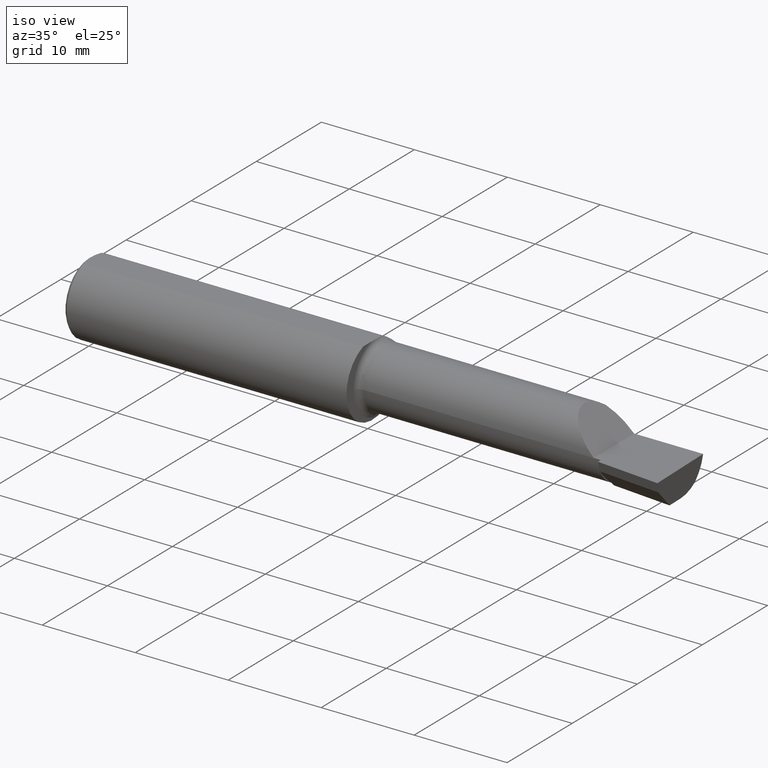
[diagram: clean part render]
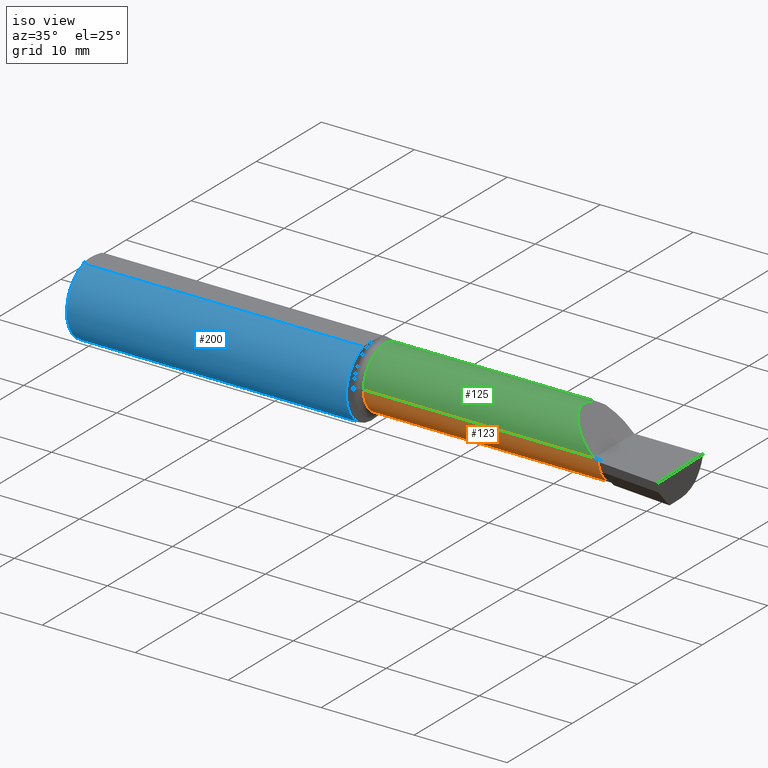
[diagram: same view with three faces highlighted in distinct colors, each labeled with its STEP entity id]
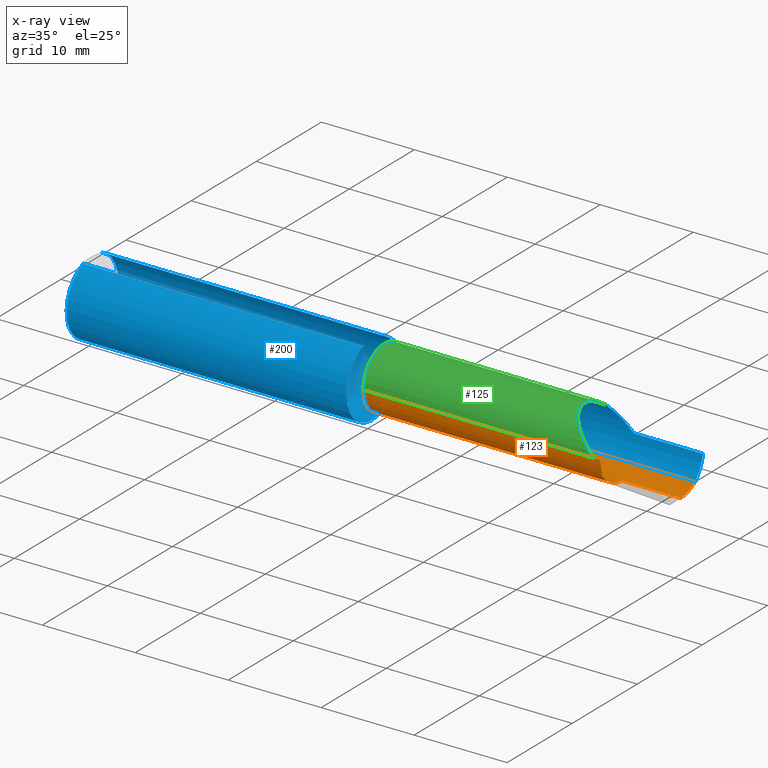
[diagram: x-ray of the same camera — body ghosted, the three highlighted faces saturated]
A machine part, iso view with three faces highlighted in distinct colors.
The next image is the same camera in x-ray (body ghosted, the three faces saturated) — at least one of them is partly hidden behind the body in this view.
Their STEP definitions:

[orange] entity #123 — the highlighted cylindrical surface (partial cylindrical patch) has radius 3.2487 mm, axis along (-1, 0, -0).
#17 = CARTESIAN_POINT ( 'NONE',  ( 2.500000000000000000, 0.03899999999999996525, -0.1279000000000000137 ) ) ;
#20 = CARTESIAN_POINT ( 'NONE',  ( 2.229999999999999982, -0.07288638121117577140, -0.06196650465749590359 ) ) ;
#22 = EDGE_CURVE ( 'NONE', #524, #364, #44, .T. ) ;
#28 = VERTEX_POINT ( 'NONE', #649 ) ;
#40 =( BOUNDED_CURVE ( )  B_SPLINE_CURVE ( 3, ( #347, #561, #564, #394 ),
 .UNSPECIFIED., .F., .F. ) 
 B_SPLINE_CURVE_WITH_KNOTS ( ( 4, 4 ),
 ( 3.414788950605319062, 3.426164066945256437 ),
 .UNSPECIFIED. ) 
 CURVE ( )  GEOMETRIC_REPRESENTATION_ITEM ( )  RATIONAL_B_SPLINE_CURVE ( ( 1.000000000000000000, 0.9999892172564213144, 0.9999892172564213144, 1.000000000000000000 ) ) 
 REPRESENTATION_ITEM ( '' )  );
#44 =( BOUNDED_CURVE ( )  B_SPLINE_CURVE ( 3, ( #331, #480, #57, #383 ),
 .UNSPECIFIED., .F., .T. ) 
 B_SPLINE_CURVE_WITH_KNOTS ( ( 4, 4 ),
 ( 5.219635427496932323, 5.798005679412930213 ),
 .UNSPECIFIED. ) 
 CURVE ( )  GEOMETRIC_REPRESENTATION_ITEM ( )  RATIONAL_B_SPLINE_CURVE ( ( 1.000000000000000000, 0.9723177149240065376, 0.9723177149240065376, 1.000000000000000000 ) ) 
 REPRESENTATION_ITEM ( '' )  );
#52 = CARTESIAN_POINT ( 'NONE',  ( 2.229999999999999982, -0.07288638121117577140, -0.06196650465749590359 ) ) ;
#57 = CARTESIAN_POINT ( 'NONE',  ( 2.220366584553311373, -0.06247635677146577693, -0.08177012336190633834 ) ) ;
#63 = ORIENTED_EDGE ( 'NONE', *, *, #209, .T. ) ;
#64 = EDGE_CURVE ( 'NONE', #364, #593, #320, .T. ) ;
#71 = CARTESIAN_POINT ( 'NONE',  ( 0.000000000000000000, 0.03899999999999999994, 0.000000000000000000 ) ) ;
#85 = VERTEX_POINT ( 'NONE', #160 ) ;
#88 = ORIENTED_EDGE ( 'NONE', *, *, #603, .T. ) ;
#89 = DIRECTION ( 'NONE',  ( -1.000000000000000000, 6.829619984160658046E-18, -0.000000000000000000 ) ) ;
#90 = ORIENTED_EDGE ( 'NONE', *, *, #64, .T. ) ;
#94 = DIRECTION ( 'NONE',  ( -1.000000000000000000, 6.829619984160658046E-18, -0.000000000000000000 ) ) ;
#120 = DIRECTION ( 'NONE',  ( -1.000000000000000000, 6.829619984160658046E-18, -0.000000000000000000 ) ) ;
#123 = ADVANCED_FACE ( 'NONE', ( #430 ), #183, .T. ) ;
#138 = DIRECTION ( 'NONE',  ( -1.000000000000000000, 6.829619984160658046E-18, -0.000000000000000000 ) ) ;
#144 = VERTEX_POINT ( 'NONE', #354 ) ;
#154 = AXIS2_PLACEMENT_3D ( 'NONE', #190, #138, #392 ) ;
#155 = EDGE_CURVE ( 'NONE', #85, #524, #40, .T. ) ;
#160 = CARTESIAN_POINT ( 'NONE',  ( 2.229999999999999982, -0.02439791101555209216, -0.1110815685830198463 ) ) ;
#163 = ORIENTED_EDGE ( 'NONE', *, *, #696, .T. ) ;
#183 = CYLINDRICAL_SURFACE ( 'NONE', #467, 0.1279000000000000414 ) ;
#190 = CARTESIAN_POINT ( 'NONE',  ( 1.225000000000000089, 0.03899999999999998607, 0.000000000000000000 ) ) ;
#191 = DIRECTION ( 'NONE',  ( 0.000000000000000000, -1.000000000000000000, 0.000000000000000000 ) ) ;
#197 = CARTESIAN_POINT ( 'NONE',  ( 2.480278310775617889, 0.03899999999999996525, -0.1279000000000000137 ) ) ;
#209 = EDGE_CURVE ( 'NONE', #527, #85, #454, .T. ) ;
#231 = CARTESIAN_POINT ( 'NONE',  ( 2.219243579197731631, -0.07413921331227923961, -0.05964837307989710041 ) ) ;
#237 = VERTEX_POINT ( 'NONE', #657 ) ;
#241 = ORIENTED_EDGE ( 'NONE', *, *, #474, .F. ) ;
#251 = LINE ( 'NONE', #362, #304 ) ;
#275 = DIRECTION ( 'NONE',  ( 1.000000000000000000, -6.829619984160658046E-18, 0.000000000000000000 ) ) ;
#277 = CARTESIAN_POINT ( 'NONE',  ( 2.226541365962205976, -0.07331194456661031811, -0.06119810979516131233 ) ) ;
#281 = ORIENTED_EDGE ( 'NONE', *, *, #155, .T. ) ;
#294 = CARTESIAN_POINT ( 'NONE',  ( 2.480278310775617889, 0.03899999999999996525, -0.1279000000000000137 ) ) ;
#304 = VECTOR ( 'NONE', #94, 39.37007874015748143 ) ;
#319 = EDGE_LOOP ( 'NONE', ( #521, #88, #641, #241, #163, #613, #63, #281, #408, #90, #419 ) ) ;
#320 =( BOUNDED_CURVE ( )  B_SPLINE_CURVE ( 3, ( #231, #387, #277, #52 ),
 .UNSPECIFIED., .F., .T. ) 
 B_SPLINE_CURVE_WITH_KNOTS ( ( 4, 4 ),
 ( 2.847793815029257658, 2.868396356574266282 ),
 .UNSPECIFIED. ) 
 CURVE ( )  GEOMETRIC_REPRESENTATION_ITEM ( )  RATIONAL_B_SPLINE_CURVE ( ( 1.000000000000000000, 0.9999646282529517372, 0.9999646282529517372, 1.000000000000000000 ) ) 
 REPRESENTATION_ITEM ( '' )  );
#327 = CARTESIAN_POINT ( 'NONE',  ( 2.219243579197731631, -0.07413921331227923961, -0.05964837307989710041 ) ) ;
#331 = CARTESIAN_POINT ( 'NONE',  ( 2.224155181711049423, -0.02313027091166865515, -0.1117955251181489279 ) ) ;
#333 = EDGE_CURVE ( 'NONE', #144, #691, #479, .T. ) ;
#343 = DIRECTION ( 'NONE',  ( -1.000000000000000000, 6.829619984160658046E-18, -0.000000000000000000 ) ) ;
#346 = DIRECTION ( 'NONE',  ( -1.000000000000000000, -0.000000000000000000, -0.000000000000000000 ) ) ;
#347 = CARTESIAN_POINT ( 'NONE',  ( 2.229999999999999982, -0.02439791101555209216, -0.1110815685830198463 ) ) ;
#349 = LINE ( 'NONE', #604, #476 ) ;
#354 = CARTESIAN_POINT ( 'NONE',  ( 2.200000000000000178, -0.08890000000000010394, 9.797174393178826150E-17 ) ) ;
#362 = CARTESIAN_POINT ( 'NONE',  ( -8.735083959741485906E-19, -0.08890000000000006231, 0.000000000000000000 ) ) ;
#364 = VERTEX_POINT ( 'NONE', #327 ) ;
#366 = VERTEX_POINT ( 'NONE', #410 ) ;
#368 = AXIS2_PLACEMENT_3D ( 'NONE', #514, #343, #191 ) ;
#383 = CARTESIAN_POINT ( 'NONE',  ( 2.219243579197731631, -0.07413921331227923961, -0.05964837307989710041 ) ) ;
#387 = CARTESIAN_POINT ( 'NONE',  ( 2.222955765532498518, -0.07372957003912070095, -0.06042537193620695773 ) ) ;
#388 =( BOUNDED_CURVE ( )  B_SPLINE_CURVE ( 3, ( #685, #633, #464, #197 ),
 .UNSPECIFIED., .F., .T. ) 
 B_SPLINE_CURVE_WITH_KNOTS ( ( 4, 4 ),
 ( 5.797683689972070731, 6.505699533271590340 ),
 .UNSPECIFIED. ) 
 CURVE ( )  GEOMETRIC_REPRESENTATION_ITEM ( )  RATIONAL_B_SPLINE_CURVE ( ( 1.000000000000000000, 0.9586605761426444383, 0.9586605761426444383, 1.000000000000000000 ) ) 
 REPRESENTATION_ITEM ( '' )  );
#392 = DIRECTION ( 'NONE',  ( 0.000000000000000000, -1.000000000000000000, 0.000000000000000000 ) ) ;
#394 = CARTESIAN_POINT ( 'NONE',  ( 2.224155181711049423, -0.02313027091166865515, -0.1117955251181489279 ) ) ;
#408 = ORIENTED_EDGE ( 'NONE', *, *, #22, .T. ) ;
#410 = CARTESIAN_POINT ( 'NONE',  ( 1.225000000000000089, 0.1221769230769226278, -0.09715971113303976947 ) ) ;
#419 = ORIENTED_EDGE ( 'NONE', *, *, #632, .T. ) ;
#422 = VECTOR ( 'NONE', #275, 39.37007874015748143 ) ;
#430 = FACE_OUTER_BOUND ( 'NONE', #319, .T. ) ;
#442 = CARTESIAN_POINT ( 'NONE',  ( 2.229999999999999982, 0.03899999999999996525, -0.1278999999999999859 ) ) ;
#447 = LINE ( 'NONE', #17, #567 ) ;
#454 = CIRCLE ( 'NONE', #368, 0.1278999999999999859 ) ;
#464 = CARTESIAN_POINT ( 'NONE',  ( 2.479452310584073782, 0.06983316589608450087, -0.1279000000000000692 ) ) ;
#465 = CARTESIAN_POINT ( 'NONE',  ( -8.735083959741173905E-19, -0.08890000000000003455, 3.155924005931204823E-16 ) ) ;
#467 = AXIS2_PLACEMENT_3D ( 'NONE', #71, #504, #619 ) ;
#474 = EDGE_CURVE ( 'NONE', #237, #366, #349, .T. ) ;
#476 = VECTOR ( 'NONE', #120, 39.37007874015748143 ) ;
#479 = LINE ( 'NONE', #465, #422 ) ;
#480 = CARTESIAN_POINT ( 'NONE',  ( 2.222050397172008918, -0.04498929411774009457, -0.09964739099361778762 ) ) ;
#484 = VERTEX_POINT ( 'NONE', #294 ) ;
#504 = DIRECTION ( 'NONE',  ( -1.000000000000000000, 6.829619984160658046E-18, -0.000000000000000000 ) ) ;
#505 = EDGE_CURVE ( 'NONE', #366, #28, #646, .T. ) ;
#513 = CARTESIAN_POINT ( 'NONE',  ( 2.224155181711049423, -0.02313027091166865515, -0.1117955251181489279 ) ) ;
#514 = CARTESIAN_POINT ( 'NONE',  ( 2.229999999999999982, 0.03899999999999997913, 0.000000000000000000 ) ) ;
#516 = CARTESIAN_POINT ( 'NONE',  ( 2.229999999999999982, -0.08890000000000000679, 0.000000000000000000 ) ) ;
#521 = ORIENTED_EDGE ( 'NONE', *, *, #333, .F. ) ;
#523 = AXIS2_PLACEMENT_3D ( 'NONE', #635, #89, #676 ) ;
#524 = VERTEX_POINT ( 'NONE', #513 ) ;
#527 = VERTEX_POINT ( 'NONE', #442 ) ;
#561 = CARTESIAN_POINT ( 'NONE',  ( 2.228090435553064630, -0.02397672015612764551, -0.1113219560835474881 ) ) ;
#564 = CARTESIAN_POINT ( 'NONE',  ( 2.226142141782129436, -0.02355416889857130450, -0.1115599441614216064 ) ) ;
#567 = VECTOR ( 'NONE', #346, 39.37007874015748143 ) ;
#584 = EDGE_CURVE ( 'NONE', #484, #527, #447, .T. ) ;
#593 = VERTEX_POINT ( 'NONE', #20 ) ;
#603 = EDGE_CURVE ( 'NONE', #144, #28, #251, .T. ) ;
#604 = CARTESIAN_POINT ( 'NONE',  ( 1.727500000000000036, 0.1221769230769228221, -0.09715971113303947804 ) ) ;
#613 = ORIENTED_EDGE ( 'NONE', *, *, #584, .T. ) ;
#619 = DIRECTION ( 'NONE',  ( -6.829619984160658816E-18, -1.000000000000000000, 0.000000000000000000 ) ) ;
#632 = EDGE_CURVE ( 'NONE', #593, #691, #684, .T. ) ;
#633 = CARTESIAN_POINT ( 'NONE',  ( 2.479943065675275449, 0.09875439382140556444, -0.1172113754642093580 ) ) ;
#635 = CARTESIAN_POINT ( 'NONE',  ( 2.229999999999999982, 0.03899999999999997913, 0.000000000000000000 ) ) ;
#641 = ORIENTED_EDGE ( 'NONE', *, *, #505, .F. ) ;
#646 = CIRCLE ( 'NONE', #154, 0.1279000000000001247 ) ;
#649 = CARTESIAN_POINT ( 'NONE',  ( 1.225000000000000089, -0.08890000000000014557, 0.000000000000000000 ) ) ;
#657 = CARTESIAN_POINT ( 'NONE',  ( 2.481689713451043833, 0.1221769230769228221, -0.09715971113303947804 ) ) ;
#676 = DIRECTION ( 'NONE',  ( 0.000000000000000000, -1.000000000000000000, 0.000000000000000000 ) ) ;
#684 = CIRCLE ( 'NONE', #523, 0.1278999999999999859 ) ;
#685 = CARTESIAN_POINT ( 'NONE',  ( 2.481689713451043833, 0.1221769230769228221, -0.09715971113303947804 ) ) ;
#691 = VERTEX_POINT ( 'NONE', #516 ) ;
#696 = EDGE_CURVE ( 'NONE', #237, #484, #388, .T. ) ;

[blue] entity #200 — the highlighted cylindrical surface (partial cylindrical patch) has radius 3.9649 mm, axis along (-1, -0, -0).
#19 = VERTEX_POINT ( 'NONE', #533 ) ;
#37 = CARTESIAN_POINT ( 'NONE',  ( 0.000000000000000000, -0.05497272050753897882, 0.1461000000000000076 ) ) ;
#41 = ORIENTED_EDGE ( 'NONE', *, *, #474, .T. ) ;
#43 = ORIENTED_EDGE ( 'NONE', *, *, #151, .T. ) ;
#56 = DIRECTION ( 'NONE',  ( 1.000000000000000000, -6.829619984160658046E-18, 0.000000000000000000 ) ) ;
#61 = CARTESIAN_POINT ( 'NONE',  ( 1.225000000000000089, 0.1221769230769226278, -0.09715971113303976947 ) ) ;
#65 = CARTESIAN_POINT ( 'NONE',  ( 1.225000000000000089, 0.1221769230769225167, 0.09715971113303982498 ) ) ;
#66 = CARTESIAN_POINT ( 'NONE',  ( 2.488065891762460069, 0.1561000000000000443, -0.03563149886036994646 ) ) ;
#67 = VERTEX_POINT ( 'NONE', #112 ) ;
#68 = EDGE_CURVE ( 'NONE', #506, #67, #357, .T. ) ;
#70 = CARTESIAN_POINT ( 'NONE',  ( 1.211718925422504034, 0.1096997042182708271, -0.1111484413982584823 ) ) ;
#73 = EDGE_CURVE ( 'NONE', #67, #473, #175, .T. ) ;
#74 = DIRECTION ( 'NONE',  ( 1.000000000000000000, 0.000000000000000000, 0.000000000000000000 ) ) ;
#75 = LINE ( 'NONE', #440, #522 ) ;
#78 = CARTESIAN_POINT ( 'NONE',  ( 1.207643545987175049, 0.09968740490940219967, -0.1204690658458919816 ) ) ;
#79 = CARTESIAN_POINT ( 'NONE',  ( 2.102840288866959728, 0.1221769230769227388, 0.09715971113303956130 ) ) ;
#84 = CARTESIAN_POINT ( 'NONE',  ( 1.203337430773764538, 0.08212431379002424481, 0.1335735365034965150 ) ) ;
#91 = AXIS2_PLACEMENT_3D ( 'NONE', #500, #396, #179 ) ;
#96 = VERTEX_POINT ( 'NONE', #587 ) ;
#101 = CIRCLE ( 'NONE', #91, 0.1560999999999999888 ) ;
#112 = CARTESIAN_POINT ( 'NONE',  ( 0.01499999999999999424, 0.000000000000000000, -0.1560999999999999888 ) ) ;
#114 =( BOUNDED_CURVE ( )  B_SPLINE_CURVE ( 3, ( #79, #243, #661, #664 ),
 .UNSPECIFIED., .F., .T. ) 
 B_SPLINE_CURVE_WITH_KNOTS ( ( 4, 4 ),
 ( 0.8989658999765571812, 1.570796326794896336 ),
 .UNSPECIFIED. ) 
 CURVE ( )  GEOMETRIC_REPRESENTATION_ITEM ( )  RATIONAL_B_SPLINE_CURVE ( ( 1.000000000000000000, 0.9627393467969929119, 0.9627393467969929119, 1.000000000000000000 ) ) 
 REPRESENTATION_ITEM ( '' )  );
#120 = DIRECTION ( 'NONE',  ( -1.000000000000000000, 6.829619984160658046E-18, -0.000000000000000000 ) ) ;
#132 = ORIENTED_EDGE ( 'NONE', *, *, #577, .T. ) ;
#133 = CARTESIAN_POINT ( 'NONE',  ( 0.01499999999999999424, 0.05497272050753903433, 0.1460999999999999521 ) ) ;
#142 = CARTESIAN_POINT ( 'NONE',  ( 1.207875668882802067, 0.09985555054163969269, 0.1202116869044327213 ) ) ;
#146 = CARTESIAN_POINT ( 'NONE',  ( 1.225000000000000089, 0.1221769230769225167, 0.09715971113303982498 ) ) ;
#151 = EDGE_CURVE ( 'NONE', #96, #237, #671, .T. ) ;
#157 = EDGE_CURVE ( 'NONE', #535, #96, #75, .T. ) ;
#158 = ORIENTED_EDGE ( 'NONE', *, *, #499, .T. ) ;
#166 = CARTESIAN_POINT ( 'NONE',  ( 1.217713039397279484, 0.1186710145423636176, 0.1014253537327265420 ) ) ;
#175 = CIRCLE ( 'NONE', #345, 0.1560999999999999888 ) ;
#176 = CARTESIAN_POINT ( 'NONE',  ( 0.01499999999999999944, -0.05497272050753897882, 0.1461000000000000076 ) ) ;
#179 = DIRECTION ( 'NONE',  ( 0.000000000000000000, -1.000000000000000000, 0.000000000000000000 ) ) ;
#180 = CARTESIAN_POINT ( 'NONE',  ( 1.200713348720346074, 0.05497272050753925637, 0.1460999999999999521 ) ) ;
#182 = CARTESIAN_POINT ( 'NONE',  ( 1.213285512035948033, 0.1129012003027988348, -0.1078842078934687393 ) ) ;
#186 = CARTESIAN_POINT ( 'NONE',  ( 1.220642477297819939, 0.1209866175416250689, -0.09864046781463561842 ) ) ;
#189 = EDGE_CURVE ( 'NONE', #19, #535, #114, .T. ) ;
#194 = B_SPLINE_CURVE_WITH_KNOTS ( 'NONE', 3,
 ( #180, #448, #84, #142, #575, #428, #198, #166, #682, #360, #626, #146 ),
 .UNSPECIFIED., .F., .F.,
 ( 4, 2, 2, 2, 2, 4 ),
 ( 5.609278044435371121E-07, 0.001139286486424878446, 0.001708649265735096272, 0.001993330655390204535, 0.002135671350217761486, 0.002278012045045318002 ),
 .UNSPECIFIED. ) ;
#198 = CARTESIAN_POINT ( 'NONE',  ( 1.214904289182652697, 0.1154277421181116453, 0.1051401666291003484 ) ) ;
#200 = ADVANCED_FACE ( 'NONE', ( #558 ), #674, .T. ) ;
#201 = VERTEX_POINT ( 'NONE', #295 ) ;
#237 = VERTEX_POINT ( 'NONE', #657 ) ;
#243 = CARTESIAN_POINT ( 'NONE',  ( 2.130728481662468532, 0.1443546689866651578, 0.06927151833753088239 ) ) ;
#248 = CARTESIAN_POINT ( 'NONE',  ( 2.200000000000000178, 0.1560999999999997667, 9.797174393178826150E-17 ) ) ;
#254 = ORIENTED_EDGE ( 'NONE', *, *, #598, .T. ) ;
#262 = EDGE_CURVE ( 'NONE', #627, #546, #194, .T. ) ;
#265 = CARTESIAN_POINT ( 'NONE',  ( 1.200000000000000400, 0.04153761541478932784, -0.1507758181214158555 ) ) ;
#274 = DIRECTION ( 'NONE',  ( -1.000000000000000000, -0.000000000000000000, -0.000000000000000000 ) ) ;
#279 = CARTESIAN_POINT ( 'NONE',  ( 1.199999999999999956, 0.03217692307692246456, -0.1527476861405821784 ) ) ;
#290 = CARTESIAN_POINT ( 'NONE',  ( 1.205770389155364830, 0.09238103948165153623, -0.1261792856732153745 ) ) ;
#295 = CARTESIAN_POINT ( 'NONE',  ( 1.199999999999999956, -0.05497272050753900657, 0.1461000000000000076 ) ) ;
#297 = CARTESIAN_POINT ( 'NONE',  ( 1.202778396491914537, 0.07658129683222554551, -0.1363479870192731980 ) ) ;
#301 = DIRECTION ( 'NONE',  ( 1.000000000000000000, 0.000000000000000000, 0.000000000000000000 ) ) ;
#313 = DIRECTION ( 'NONE',  ( -1.000000000000000000, -0.000000000000000000, -0.000000000000000000 ) ) ;
#325 = VECTOR ( 'NONE', #56, 39.37007874015748143 ) ;
#336 = AXIS2_PLACEMENT_3D ( 'NONE', #697, #274, #543 ) ;
#339 = CARTESIAN_POINT ( 'NONE',  ( 2.481689713451043833, 0.1221769230769228221, -0.09715971113303947804 ) ) ;
#345 = AXIS2_PLACEMENT_3D ( 'NONE', #701, #491, #439 ) ;
#349 = LINE ( 'NONE', #604, #476 ) ;
#357 = CIRCLE ( 'NONE', #336, 0.1560999999999999888 ) ;
#359 = VECTOR ( 'NONE', #313, 39.37007874015748143 ) ;
#360 = CARTESIAN_POINT ( 'NONE',  ( 1.221394201221187581, 0.1214391589398821913, 0.09808983170724418221 ) ) ;
#366 = VERTEX_POINT ( 'NONE', #410 ) ;
#369 = VECTOR ( 'NONE', #74, 39.37007874015748143 ) ;
#396 = DIRECTION ( 'NONE',  ( -1.000000000000000000, 6.829619984160658046E-18, -0.000000000000000000 ) ) ;
#401 = CARTESIAN_POINT ( 'NONE',  ( 1.217557852537987095, 0.1186103045499234260, -0.1015006042428818894 ) ) ;
#405 = CARTESIAN_POINT ( 'NONE',  ( 1.223773678789314978, 0.1221769230769226278, -0.09715971113303982498 ) ) ;
#410 = CARTESIAN_POINT ( 'NONE',  ( 1.225000000000000089, 0.1221769230769226278, -0.09715971113303976947 ) ) ;
#427 = VERTEX_POINT ( 'NONE', #279 ) ;
#428 = CARTESIAN_POINT ( 'NONE',  ( 1.213476732597053243, 0.1130158469709905689, 0.1077376761497233215 ) ) ;
#433 = AXIS2_PLACEMENT_3D ( 'NONE', #611, #608, #451 ) ;
#439 = DIRECTION ( 'NONE',  ( 0.000000000000000000, 0.000000000000000000, 1.000000000000000000 ) ) ;
#440 = CARTESIAN_POINT ( 'NONE',  ( 3.121792066109142165E-32, 0.1560999999999999333, 3.155924005931204823E-16 ) ) ;
#443 = EDGE_CURVE ( 'NONE', #546, #19, #492, .T. ) ;
#448 = CARTESIAN_POINT ( 'NONE',  ( 1.201630938536527804, 0.06913608029031610702, 0.1407707842656650832 ) ) ;
#451 = DIRECTION ( 'NONE',  ( 0.000000000000000000, 0.000000000000000000, 1.000000000000000000 ) ) ;
#459 = ORIENTED_EDGE ( 'NONE', *, *, #157, .T. ) ;
#470 = EDGE_LOOP ( 'NONE', ( #459, #43, #41, #254, #158, #530, #565, #687, #132, #624, #585, #559 ) ) ;
#473 = VERTEX_POINT ( 'NONE', #176 ) ;
#474 = EDGE_CURVE ( 'NONE', #237, #366, #349, .T. ) ;
#476 = VECTOR ( 'NONE', #120, 39.37007874015748143 ) ;
#491 = DIRECTION ( 'NONE',  ( -1.000000000000000000, -0.000000000000000000, -0.000000000000000000 ) ) ;
#492 = LINE ( 'NONE', #647, #325 ) ;
#495 = CARTESIAN_POINT ( 'NONE',  ( 1.201725101710128696, 0.06813315891665767954, -0.1407628789512505862 ) ) ;
#499 = EDGE_CURVE ( 'NONE', #427, #201, #101, .T. ) ;
#500 = CARTESIAN_POINT ( 'NONE',  ( 1.199999999999999956, 0.000000000000000000, 0.000000000000000000 ) ) ;
#506 = VERTEX_POINT ( 'NONE', #133 ) ;
#522 = VECTOR ( 'NONE', #301, 39.37007874015748143 ) ;
#525 = LINE ( 'NONE', #37, #359 ) ;
#530 = ORIENTED_EDGE ( 'NONE', *, *, #648, .T. ) ;
#533 = CARTESIAN_POINT ( 'NONE',  ( 2.102840288866959728, 0.1221769230769227388, 0.09715971113303956130 ) ) ;
#535 = VERTEX_POINT ( 'NONE', #248 ) ;
#543 = DIRECTION ( 'NONE',  ( 0.000000000000000000, 0.000000000000000000, 1.000000000000000000 ) ) ;
#546 = VERTEX_POINT ( 'NONE', #65 ) ;
#548 = LINE ( 'NONE', #560, #369 ) ;
#558 = FACE_OUTER_BOUND ( 'NONE', #470, .T. ) ;
#559 = ORIENTED_EDGE ( 'NONE', *, *, #189, .T. ) ;
#560 = CARTESIAN_POINT ( 'NONE',  ( 0.000000000000000000, 0.05497272050753903433, 0.1460999999999999521 ) ) ;
#563 = CARTESIAN_POINT ( 'NONE',  ( 1.216392177358947890, 0.1172252637552312904, -0.1031022108064124920 ) ) ;
#565 = ORIENTED_EDGE ( 'NONE', *, *, #73, .F. ) ;
#574 = CARTESIAN_POINT ( 'NONE',  ( 1.200339637342208388, 0.05067448177557429267, -0.1479473295851734815 ) ) ;
#575 = CARTESIAN_POINT ( 'NONE',  ( 1.209698108077551071, 0.1054404049151043687, 0.1153284228895399138 ) ) ;
#577 = EDGE_CURVE ( 'NONE', #506, #627, #548, .T. ) ;
#585 = ORIENTED_EDGE ( 'NONE', *, *, #443, .T. ) ;
#587 = CARTESIAN_POINT ( 'NONE',  ( 2.492284669827090404, 0.1560999999999998500, 6.904452464043948710E-17 ) ) ;
#598 = EDGE_CURVE ( 'NONE', #366, #427, #602, .T. ) ;
#602 = B_SPLINE_CURVE_WITH_KNOTS ( 'NONE', 3,
 ( #61, #405, #663, #186, #618, #401, #563, #182, #70, #78, #290, #297, #495, #574, #265, #690 ),
 .UNSPECIFIED., .F., .F.,
 ( 4, 2, 2, 2, 2, 2, 2, 4 ),
 ( 1.968192473106401547E-07, 9.217006773806006819E-05, 0.0001841433162288094976, 0.0003680898132103134252, 0.0007359828071733167266, 0.001471768795099326907, 0.002207554783025337305, 0.002943340770951347919 ),
 .UNSPECIFIED. ) ;
#604 = CARTESIAN_POINT ( 'NONE',  ( 1.727500000000000036, 0.1221769230769228221, -0.09715971113303947804 ) ) ;
#605 = CARTESIAN_POINT ( 'NONE',  ( 2.484397555013683423, 0.1443546689866652688, -0.06927151833753072974 ) ) ;
#608 = DIRECTION ( 'NONE',  ( -1.000000000000000000, -0.000000000000000000, -0.000000000000000000 ) ) ;
#611 = CARTESIAN_POINT ( 'NONE',  ( 0.000000000000000000, 0.000000000000000000, 0.000000000000000000 ) ) ;
#618 = CARTESIAN_POINT ( 'NONE',  ( 1.219807963827557629, 0.1204260765459409382, -0.09932603807424206233 ) ) ;
#624 = ORIENTED_EDGE ( 'NONE', *, *, #262, .T. ) ;
#626 = CARTESIAN_POINT ( 'NONE',  ( 1.223073469876037711, 0.1221769230783502219, 0.09715971113124470537 ) ) ;
#627 = VERTEX_POINT ( 'NONE', #688 ) ;
#647 = CARTESIAN_POINT ( 'NONE',  ( 1.727500000000000036, 0.1221769230769228221, 0.09715971113303947804 ) ) ;
#648 = EDGE_CURVE ( 'NONE', #201, #473, #525, .T. ) ;
#657 = CARTESIAN_POINT ( 'NONE',  ( 2.481689713451043833, 0.1221769230769228221, -0.09715971113303947804 ) ) ;
#661 = CARTESIAN_POINT ( 'NONE',  ( 2.164368501139629419, 0.1560999999999999888, 0.03563149886037015462 ) ) ;
#663 = CARTESIAN_POINT ( 'NONE',  ( 1.222618110610526276, 0.1218695340585145143, -0.09754752781702979991 ) ) ;
#664 = CARTESIAN_POINT ( 'NONE',  ( 2.200000000000000178, 0.1560999999999997667, 9.797174393178826150E-17 ) ) ;
#667 = CARTESIAN_POINT ( 'NONE',  ( 2.492284669827090404, 0.1560999999999998500, 6.904452464043948710E-17 ) ) ;
#671 =( BOUNDED_CURVE ( )  B_SPLINE_CURVE ( 3, ( #667, #66, #605, #339 ),
 .UNSPECIFIED., .F., .T. ) 
 B_SPLINE_CURVE_WITH_KNOTS ( ( 4, 4 ),
 ( 4.934903206476692006, 5.606733633295031716 ),
 .UNSPECIFIED. ) 
 CURVE ( )  GEOMETRIC_REPRESENTATION_ITEM ( )  RATIONAL_B_SPLINE_CURVE ( ( 1.000000000000000000, 0.9627393467969929119, 0.9627393467969929119, 1.000000000000000000 ) ) 
 REPRESENTATION_ITEM ( '' )  );
#674 = CYLINDRICAL_SURFACE ( 'NONE', #433, 0.1560999999999999888 ) ;
#682 = CARTESIAN_POINT ( 'NONE',  ( 1.218763041475362519, 0.1196999967355485417, 0.1002047663032609309 ) ) ;
#687 = ORIENTED_EDGE ( 'NONE', *, *, #68, .F. ) ;
#688 = CARTESIAN_POINT ( 'NONE',  ( 1.200713348720346074, 0.05497272050753925637, 0.1460999999999999521 ) ) ;
#690 = CARTESIAN_POINT ( 'NONE',  ( 1.199999999999999956, 0.03217692307692246456, -0.1527476861405821784 ) ) ;
#697 = CARTESIAN_POINT ( 'NONE',  ( 0.01499999999999999424, 0.000000000000000000, 0.000000000000000000 ) ) ;
#701 = CARTESIAN_POINT ( 'NONE',  ( 0.01499999999999999424, 0.000000000000000000, 0.000000000000000000 ) ) ;

[green] entity #125 — the highlighted cylindrical surface (partial cylindrical patch) has radius 3.2487 mm, axis along (-1, 0, -0).
#2 = AXIS2_PLACEMENT_3D ( 'NONE', #285, #118, #595 ) ;
#18 = CARTESIAN_POINT ( 'NONE',  ( 2.200000000000000178, -0.08890000000000010394, 9.797174393178826150E-17 ) ) ;
#19 = VERTEX_POINT ( 'NONE', #533 ) ;
#21 = CARTESIAN_POINT ( 'NONE',  ( 2.073458044061706751, -0.08890000000000006231, 0.1265419559382920667 ) ) ;
#28 = VERTEX_POINT ( 'NONE', #649 ) ;
#56 = DIRECTION ( 'NONE',  ( 1.000000000000000000, -6.829619984160658046E-18, 0.000000000000000000 ) ) ;
#65 = CARTESIAN_POINT ( 'NONE',  ( 1.225000000000000089, 0.1221769230769225167, 0.09715971113303982498 ) ) ;
#94 = DIRECTION ( 'NONE',  ( -1.000000000000000000, 6.829619984160658046E-18, -0.000000000000000000 ) ) ;
#118 = DIRECTION ( 'NONE',  ( -1.000000000000000000, 6.829619984160658046E-18, -0.000000000000000000 ) ) ;
#121 = CARTESIAN_POINT ( 'NONE',  ( 2.102840288866959728, 0.1221769230769227388, 0.09715971113303956130 ) ) ;
#125 = ADVANCED_FACE ( 'NONE', ( #407 ), #139, .T. ) ;
#139 = CYLINDRICAL_SURFACE ( 'NONE', #282, 0.1279000000000000414 ) ;
#144 = VERTEX_POINT ( 'NONE', #354 ) ;
#148 = EDGE_CURVE ( 'NONE', #19, #144, #526, .T. ) ;
#177 = DIRECTION ( 'NONE',  ( -6.829619984160658816E-18, -1.000000000000000000, 0.000000000000000000 ) ) ;
#196 = ORIENTED_EDGE ( 'NONE', *, *, #443, .F. ) ;
#207 = EDGE_LOOP ( 'NONE', ( #370, #302, #196, #263 ) ) ;
#240 = DIRECTION ( 'NONE',  ( -1.000000000000000000, 6.829619984160658046E-18, -0.000000000000000000 ) ) ;
#251 = LINE ( 'NONE', #362, #304 ) ;
#263 = ORIENTED_EDGE ( 'NONE', *, *, #446, .F. ) ;
#282 = AXIS2_PLACEMENT_3D ( 'NONE', #305, #240, #177 ) ;
#285 = CARTESIAN_POINT ( 'NONE',  ( 1.225000000000000089, 0.03899999999999998607, 0.000000000000000000 ) ) ;
#302 = ORIENTED_EDGE ( 'NONE', *, *, #148, .F. ) ;
#304 = VECTOR ( 'NONE', #94, 39.37007874015748143 ) ;
#305 = CARTESIAN_POINT ( 'NONE',  ( 0.000000000000000000, 0.03899999999999999994, 0.000000000000000000 ) ) ;
#325 = VECTOR ( 'NONE', #56, 39.37007874015748143 ) ;
#350 = CARTESIAN_POINT ( 'NONE',  ( 2.020546539569987310, 0.02604885517094737007, 0.1794534604300111191 ) ) ;
#354 = CARTESIAN_POINT ( 'NONE',  ( 2.200000000000000178, -0.08890000000000010394, 9.797174393178826150E-17 ) ) ;
#362 = CARTESIAN_POINT ( 'NONE',  ( -8.735083959741485906E-19, -0.08890000000000006231, 0.000000000000000000 ) ) ;
#370 = ORIENTED_EDGE ( 'NONE', *, *, #603, .F. ) ;
#407 = FACE_OUTER_BOUND ( 'NONE', #207, .T. ) ;
#443 = EDGE_CURVE ( 'NONE', #546, #19, #492, .T. ) ;
#446 = EDGE_CURVE ( 'NONE', #28, #546, #612, .T. ) ;
#492 = LINE ( 'NONE', #647, #325 ) ;
#526 =( BOUNDED_CURVE ( )  B_SPLINE_CURVE ( 3, ( #121, #350, #21, #18 ),
 .UNSPECIFIED., .F., .T. ) 
 B_SPLINE_CURVE_WITH_KNOTS ( ( 4, 4 ),
 ( 5.575169463880067511, 7.853981633974482790 ),
 .UNSPECIFIED. ) 
 CURVE ( )  GEOMETRIC_REPRESENTATION_ITEM ( )  RATIONAL_B_SPLINE_CURVE ( ( 1.000000000000000000, 0.6120893875309953991, 0.6120893875309953991, 1.000000000000000000 ) ) 
 REPRESENTATION_ITEM ( '' )  );
#533 = CARTESIAN_POINT ( 'NONE',  ( 2.102840288866959728, 0.1221769230769227388, 0.09715971113303956130 ) ) ;
#546 = VERTEX_POINT ( 'NONE', #65 ) ;
#595 = DIRECTION ( 'NONE',  ( 0.000000000000000000, -1.000000000000000000, 0.000000000000000000 ) ) ;
#603 = EDGE_CURVE ( 'NONE', #144, #28, #251, .T. ) ;
#612 = CIRCLE ( 'NONE', #2, 0.1279000000000001247 ) ;
#647 = CARTESIAN_POINT ( 'NONE',  ( 1.727500000000000036, 0.1221769230769228221, 0.09715971113303947804 ) ) ;
#649 = CARTESIAN_POINT ( 'NONE',  ( 1.225000000000000089, -0.08890000000000014557, 0.000000000000000000 ) ) ;